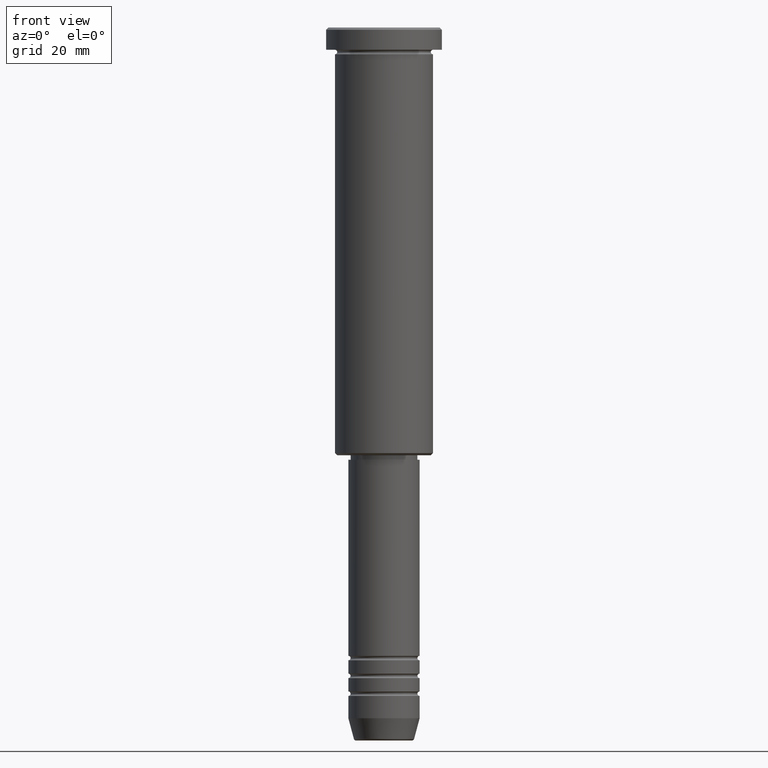
[diagram: clean part render]
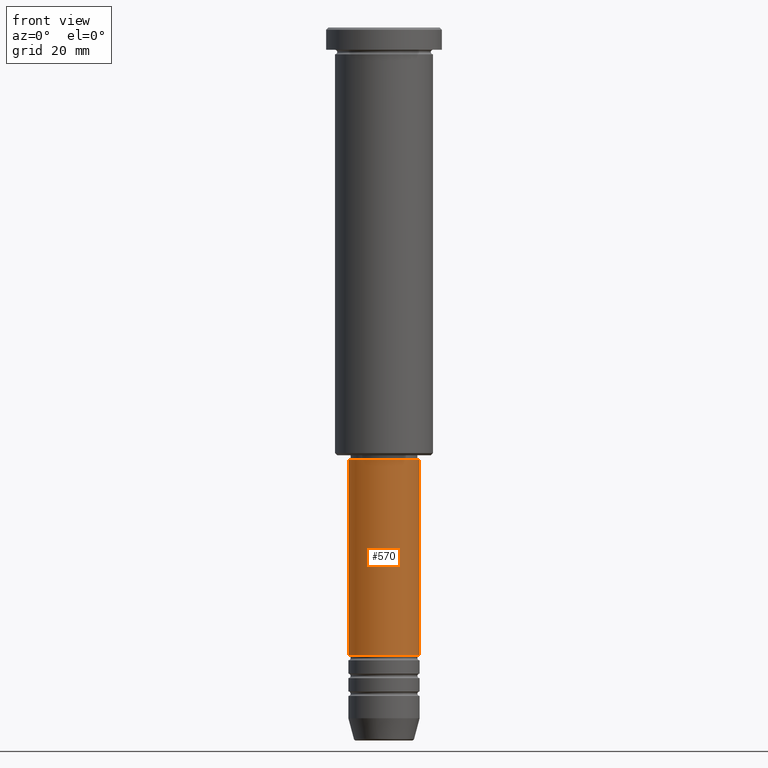
[diagram: same view with one face highlighted and labeled with its STEP entity id]
A machine part, front view. The second image highlights one B-rep face of the part: STEP entity #570.
In plain terms, the highlighted cylindrical surface (edge-blend (fillet) strip) has radius 8 mm, axis along (-0, -0, 1).
Its self-contained STEP definition (entity closure, byte-faithful):
#38 = CARTESIAN_POINT ( 'NONE',  ( 0.000000000000000000, 0.000000000000000000, 0.000000000000000000 ) ) ;
#68 = ORIENTED_EDGE ( 'NONE', *, *, #1155, .F. ) ;
#71 = ORIENTED_EDGE ( 'NONE', *, *, #655, .T. ) ;
#80 = DIRECTION ( 'NONE',  ( 1.000000000000000000, 0.000000000000000000, 0.000000000000000000 ) ) ;
#160 = DIRECTION ( 'NONE',  ( -0.000000000000000000, -0.000000000000000000, 1.000000000000000000 ) ) ;
#179 = DIRECTION ( 'NONE',  ( -0.000000000000000000, -0.000000000000000000, 1.000000000000000000 ) ) ;
#189 = CARTESIAN_POINT ( 'NONE',  ( -8.000000000000000000, 9.797174393178825657E-16, -141.0000000000000000 ) ) ;
#190 = VECTOR ( 'NONE', #160, 1000.000000000000000 ) ;
#205 = VERTEX_POINT ( 'NONE', #466 ) ;
#219 = DIRECTION ( 'NONE',  ( -0.000000000000000000, -0.000000000000000000, 1.000000000000000000 ) ) ;
#266 = CARTESIAN_POINT ( 'NONE',  ( -8.000000000000000000, 9.797174393178825657E-16, 0.000000000000000000 ) ) ;
#362 = CARTESIAN_POINT ( 'NONE',  ( 8.000000000000000000, 0.000000000000000000, 0.000000000000000000 ) ) ;
#365 = AXIS2_PLACEMENT_3D ( 'NONE', #1148, #179, #80 ) ;
#371 = AXIS2_PLACEMENT_3D ( 'NONE', #38, #219, #414 ) ;
#414 = DIRECTION ( 'NONE',  ( 1.000000000000000000, 0.000000000000000000, 0.000000000000000000 ) ) ;
#430 = VERTEX_POINT ( 'NONE', #189 ) ;
#431 = DIRECTION ( 'NONE',  ( -0.000000000000000000, -0.000000000000000000, 1.000000000000000000 ) ) ;
#435 = VERTEX_POINT ( 'NONE', #539 ) ;
#443 = CARTESIAN_POINT ( 'NONE',  ( 0.000000000000000000, 0.000000000000000000, -141.0000000000000000 ) ) ;
#466 = CARTESIAN_POINT ( 'NONE',  ( 8.000000000000000000, 0.000000000000000000, -97.00000000000002842 ) ) ;
#500 = EDGE_LOOP ( 'NONE', ( #68, #71, #1012, #1118 ) ) ;
#502 = VERTEX_POINT ( 'NONE', #595 ) ;
#534 = DIRECTION ( 'NONE',  ( -0.000000000000000000, -0.000000000000000000, 1.000000000000000000 ) ) ;
#539 = CARTESIAN_POINT ( 'NONE',  ( -8.000000000000000000, 9.797174393178825657E-16, -97.00000000000002842 ) ) ;
#565 = VECTOR ( 'NONE', #431, 1000.000000000000000 ) ;
#570 = ADVANCED_FACE ( 'NONE', ( #963 ), #1043, .T. ) ;
#595 = CARTESIAN_POINT ( 'NONE',  ( 8.000000000000000000, 0.000000000000000000, -141.0000000000000000 ) ) ;
#619 = EDGE_CURVE ( 'NONE', #435, #205, #744, .T. ) ;
#639 = EDGE_CURVE ( 'NONE', #502, #205, #984, .T. ) ;
#655 = EDGE_CURVE ( 'NONE', #430, #502, #779, .T. ) ;
#709 = LINE ( 'NONE', #266, #565 ) ;
#744 = CIRCLE ( 'NONE', #365, 8.000000000000000000 ) ;
#779 = CIRCLE ( 'NONE', #947, 8.000000000000000000 ) ;
#791 = DIRECTION ( 'NONE',  ( 1.000000000000000000, 0.000000000000000000, 0.000000000000000000 ) ) ;
#947 = AXIS2_PLACEMENT_3D ( 'NONE', #443, #534, #791 ) ;
#963 = FACE_OUTER_BOUND ( 'NONE', #500, .T. ) ;
#984 = LINE ( 'NONE', #362, #190 ) ;
#1012 = ORIENTED_EDGE ( 'NONE', *, *, #639, .T. ) ;
#1043 = CYLINDRICAL_SURFACE ( 'NONE', #371, 8.000000000000000000 ) ;
#1118 = ORIENTED_EDGE ( 'NONE', *, *, #619, .F. ) ;
#1148 = CARTESIAN_POINT ( 'NONE',  ( 0.000000000000000000, 0.000000000000000000, -97.00000000000002842 ) ) ;
#1155 = EDGE_CURVE ( 'NONE', #430, #435, #709, .T. ) ;